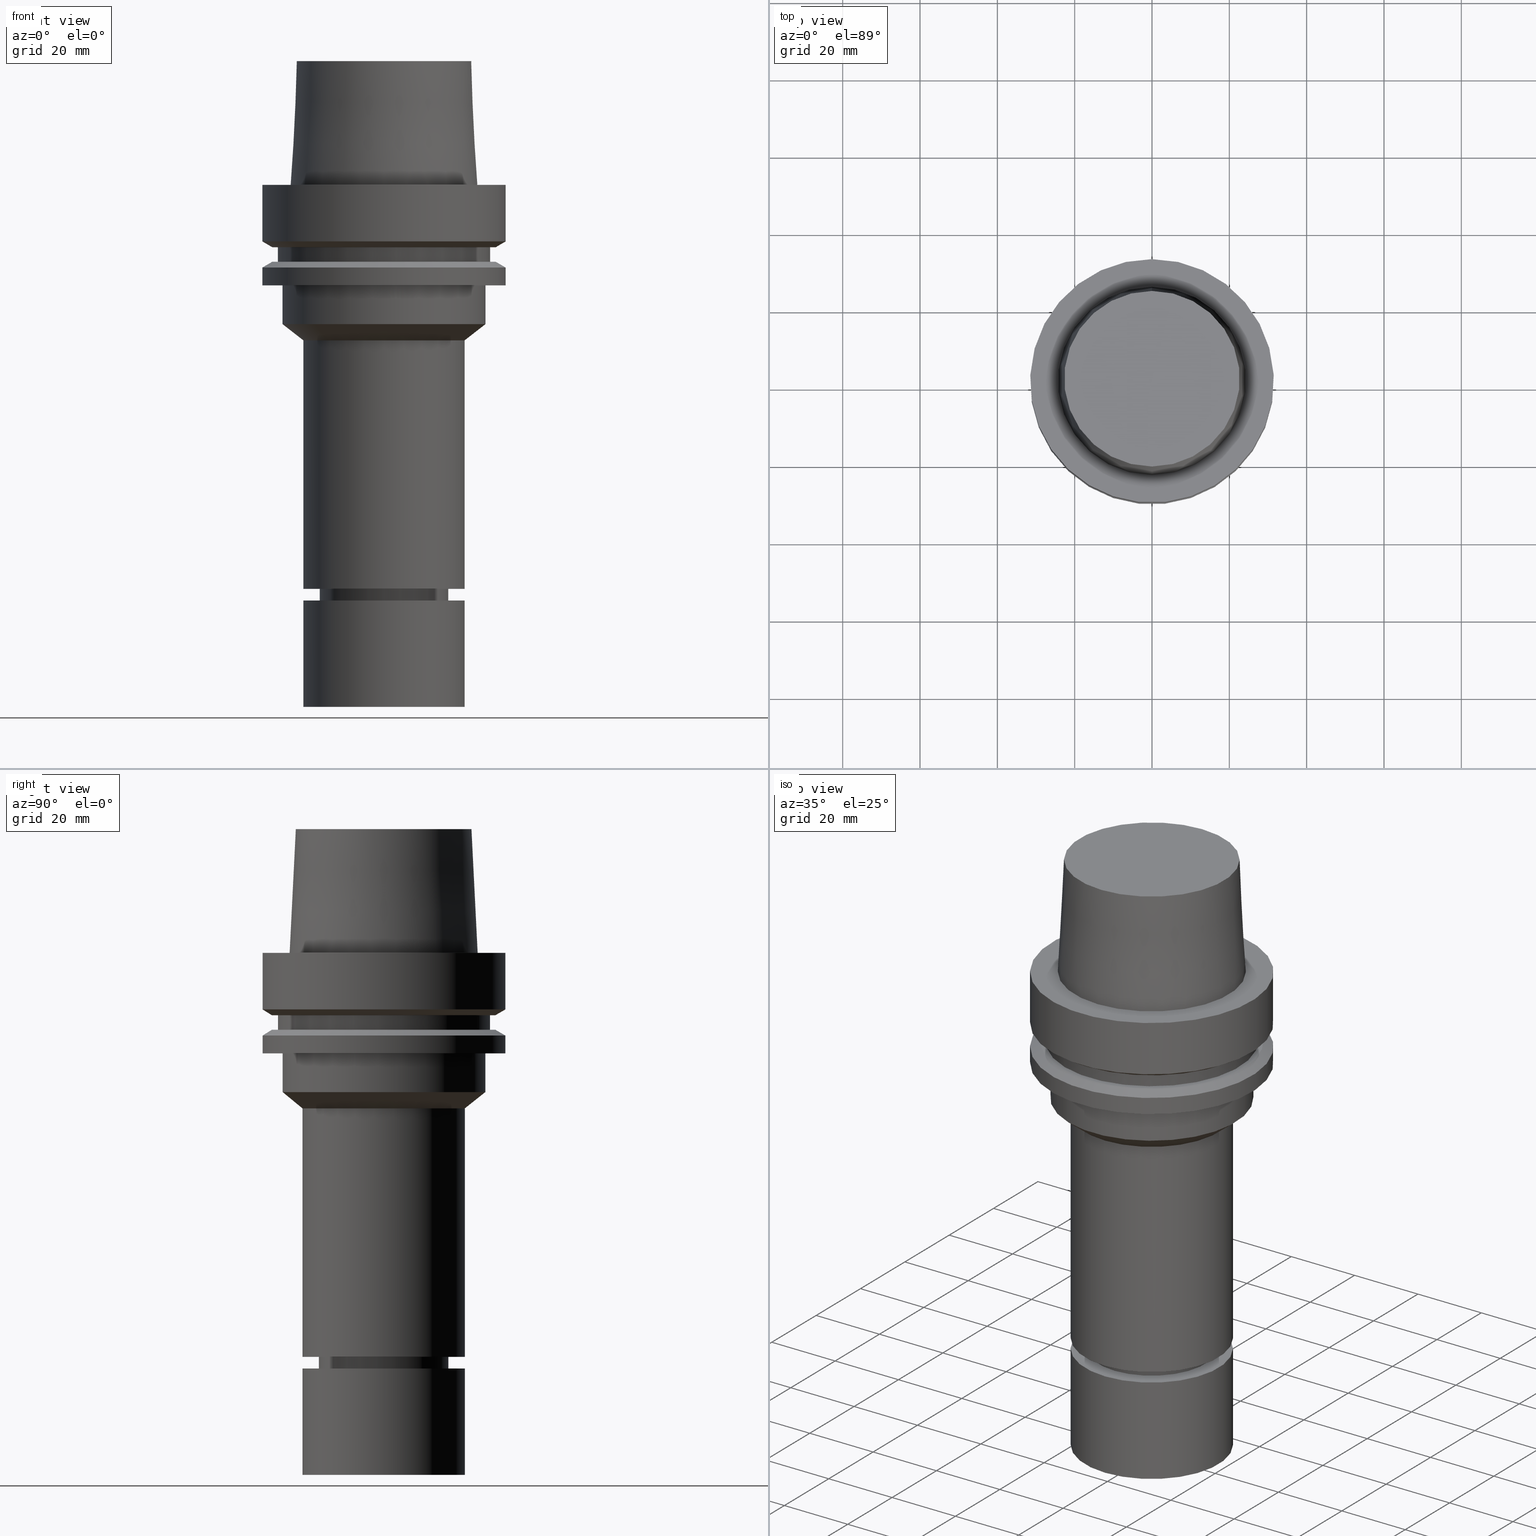
[diagram: canonical four-view strip — front | top / right | iso, engineering-drawing reading convention]
A machine part, canonical four-view strip (front | top / right | iso — engineering-drawing reading convention). The complete STEP part file that produces these views, byte-faithful:
ISO-10303-21;
HEADER;
FILE_DESCRIPTION((''),'1');
FILE_NAME('U:/Translate/02_3D_Field-HP\X2\FF71FF6FFF8CFF9F5916\X0\2013/02_Step_Field-HP\X2\FF71FF6FFF8CFF9F5916\X0\2013/HSK-A63-MEGAER25-135NL.stp','2016-06-22T00:22:26',(''),(''),'Spatial Interop R21 SP3','Kubotek KeyCreator 2011 V10.0.2 (22737)',' ');
FILE_SCHEMA(('automotive_design'));
ENDSEC;
DATA;
#1=MECHANICAL_DESIGN_GEOMETRIC_PRESENTATION_REPRESENTATION(' ',(#14,#15,#16,#17,#18,#19,#20,#21,#22,#23,#24,#25,#26,#27,#28,#29,#30,#31,#32,#33,#34,#35,#36,#37,#38,#39,#40,#41,#42,#43,#44,#45,#46,#47,#48,#49,#50,#51,#52,#53,#54,#55,#56,#57,#58,#59),#10);
#2=PRODUCT_DEFINITION_CONTEXT('',#60,'design');
#3=APPLICATION_PROTOCOL_DEFINITION('INTERNATIONAL STANDARD','automotive_design',1994,#60);
#4=PRODUCT_CATEGORY_RELATIONSHIP('NONE','NONE',#61,#62);
#5=SHAPE_DEFINITION_REPRESENTATION(#63,#64);
#6=PRODUCT_DEFINITION_CONTEXT('',#65,'design');
#7=APPLICATION_PROTOCOL_DEFINITION('INTERNATIONAL STANDARD','automotive_design',1994,#65);
#8=PRODUCT_CATEGORY_RELATIONSHIP('NONE','NONE',#66,#67);
#9=SHAPE_DEFINITION_REPRESENTATION(#68,#69);
#10= (GEOMETRIC_REPRESENTATION_CONTEXT(3)GLOBAL_UNCERTAINTY_ASSIGNED_CONTEXT((#72))GLOBAL_UNIT_ASSIGNED_CONTEXT((#74,#75,#76))REPRESENTATION_CONTEXT('NONE','WORKSPACE'));
#14=STYLED_ITEM('',(#78,#79),#80);
#15=STYLED_ITEM('',(#81,#82),#83);
#16=STYLED_ITEM('',(#84),#85);
#17=STYLED_ITEM('',(#86),#87);
#18=STYLED_ITEM('',(#88,#89),#90);
#19=STYLED_ITEM('',(#91,#92),#93);
#20=STYLED_ITEM('',(#94),#95);
#21=STYLED_ITEM('',(#96,#97),#98);
#22=STYLED_ITEM('',(#99,#100),#101);
#23=STYLED_ITEM('',(#102),#103);
#24=STYLED_ITEM('',(#104,#105),#106);
#25=STYLED_ITEM('',(#107,#108),#109);
#26=STYLED_ITEM('',(#110,#111),#112);
#27=STYLED_ITEM('',(#113,#114),#115);
#28=STYLED_ITEM('',(#116,#117),#118);
#29=STYLED_ITEM('',(#119,#120),#121);
#30=STYLED_ITEM('',(#122,#123),#124);
#31=STYLED_ITEM('',(#125),#126);
#32=STYLED_ITEM('',(#127),#128);
#33=STYLED_ITEM('',(#129,#130),#131);
#34=STYLED_ITEM('',(#132),#133);
#35=STYLED_ITEM('',(#134),#135);
#36=STYLED_ITEM('',(#136,#137),#138);
#37=STYLED_ITEM('',(#139),#140);
#38=STYLED_ITEM('',(#141),#142);
#39=STYLED_ITEM('',(#143,#144),#145);
#40=STYLED_ITEM('',(#146,#147),#148);
#41=STYLED_ITEM('',(#149,#150),#151);
#42=STYLED_ITEM('',(#152,#153),#154);
#43=STYLED_ITEM('',(#155),#156);
#44=STYLED_ITEM('',(#157,#158),#159);
#45=STYLED_ITEM('',(#160,#161),#162);
#46=STYLED_ITEM('',(#163),#164);
#47=STYLED_ITEM('',(#165,#166),#167);
#48=STYLED_ITEM('',(#168,#169),#170);
#49=STYLED_ITEM('',(#171),#172);
#50=STYLED_ITEM('',(#173),#174);
#51=STYLED_ITEM('',(#175),#176);
#52=STYLED_ITEM('',(#177),#178);
#53=STYLED_ITEM('',(#179),#180);
#54=STYLED_ITEM('',(#181,#182),#183);
#55=STYLED_ITEM('',(#184,#185),#186);
#56=STYLED_ITEM('',(#187),#188);
#57=STYLED_ITEM('',(#189),#190);
#58=STYLED_ITEM('',(#191),#192);
#59=STYLED_ITEM('',(#193),#194);
#60=APPLICATION_CONTEXT(' ');
#61=PRODUCT_CATEGORY('part','NONE');
#62=PRODUCT_RELATED_PRODUCT_CATEGORY('detail',' ',(#195));
#63=PRODUCT_DEFINITION_SHAPE('NONE','NONE',#196);
#64=ADVANCED_BREP_SHAPE_REPRESENTATION('Unnamed[1]',(#167,#197),#10);
#65=APPLICATION_CONTEXT(' ');
#66=PRODUCT_CATEGORY('part','NONE');
#67=PRODUCT_RELATED_PRODUCT_CATEGORY('detail',' ',(#198));
#68=PRODUCT_DEFINITION_SHAPE('NONE','NONE',#199);
#69=ADVANCED_BREP_SHAPE_REPRESENTATION('Unnamed[1]',(#80,#200),#10);
#72=UNCERTAINTY_MEASURE_WITH_UNIT(LENGTH_MEASURE(1.0E-006),#74,'','');
#74= (CONVERSION_BASED_UNIT('MILLIMETRE',#203)LENGTH_UNIT()NAMED_UNIT(#206));
#75= (NAMED_UNIT(#208)PLANE_ANGLE_UNIT()SI_UNIT($,.RADIAN.));
#76= (NAMED_UNIT(#208)SOLID_ANGLE_UNIT()SI_UNIT($,.STERADIAN.));
#78=PRESENTATION_STYLE_ASSIGNMENT((#214));
#79=PRESENTATION_STYLE_ASSIGNMENT((#215));
#80=MANIFOLD_SOLID_BREP('Unnamed[1]',#216);
#81=PRESENTATION_STYLE_ASSIGNMENT((#217));
#82=PRESENTATION_STYLE_ASSIGNMENT((#218));
#83=ADVANCED_FACE('Unnamed[1]',(#219),#220,.T.);
#84=PRESENTATION_STYLE_ASSIGNMENT((#221));
#85=EDGE_CURVE('Unnamed[1]',#222,#222,#223,.T.);
#86=PRESENTATION_STYLE_ASSIGNMENT((#224));
#87=EDGE_CURVE('Unnamed[1]',#225,#225,#226,.T.);
#88=PRESENTATION_STYLE_ASSIGNMENT((#227));
#89=PRESENTATION_STYLE_ASSIGNMENT((#228));
#90=ADVANCED_FACE('Unnamed[1]',(#229,#230),#231,.T.);
#91=PRESENTATION_STYLE_ASSIGNMENT((#232));
#92=PRESENTATION_STYLE_ASSIGNMENT((#233));
#93=ADVANCED_FACE('Unnamed[1]',(#234,#235),#236,.T.);
#94=PRESENTATION_STYLE_ASSIGNMENT((#237));
#95=EDGE_CURVE('Unnamed[1]',#238,#238,#239,.T.);
#96=PRESENTATION_STYLE_ASSIGNMENT((#240));
#97=PRESENTATION_STYLE_ASSIGNMENT((#241));
#98=ADVANCED_FACE('Unnamed[1]',(#242,#243),#244,.T.);
#99=PRESENTATION_STYLE_ASSIGNMENT((#245));
#100=PRESENTATION_STYLE_ASSIGNMENT((#246));
#101=ADVANCED_FACE('Unnamed[1]',(#247,#248),#249,.T.);
#102=PRESENTATION_STYLE_ASSIGNMENT((#250));
#103=EDGE_CURVE('Unnamed[1]',#251,#251,#252,.T.);
#104=PRESENTATION_STYLE_ASSIGNMENT((#253));
#105=PRESENTATION_STYLE_ASSIGNMENT((#254));
#106=ADVANCED_FACE('Unnamed[1]',(#255,#256),#257,.T.);
#107=PRESENTATION_STYLE_ASSIGNMENT((#258));
#108=PRESENTATION_STYLE_ASSIGNMENT((#259));
#109=ADVANCED_FACE('Unnamed[1]',(#260,#261),#262,.T.);
#110=PRESENTATION_STYLE_ASSIGNMENT((#263));
#111=PRESENTATION_STYLE_ASSIGNMENT((#264));
#112=ADVANCED_FACE('Unnamed[1]',(#265,#266),#267,.T.);
#113=PRESENTATION_STYLE_ASSIGNMENT((#268));
#114=PRESENTATION_STYLE_ASSIGNMENT((#269));
#115=ADVANCED_FACE('Unnamed[1]',(#270,#271),#272,.T.);
#116=PRESENTATION_STYLE_ASSIGNMENT((#273));
#117=PRESENTATION_STYLE_ASSIGNMENT((#274));
#118=ADVANCED_FACE('Unnamed[1]',(#275,#276),#277,.T.);
#119=PRESENTATION_STYLE_ASSIGNMENT((#278));
#120=PRESENTATION_STYLE_ASSIGNMENT((#279));
#121=ADVANCED_FACE('Unnamed[1]',(#280,#281),#282,.T.);
#122=PRESENTATION_STYLE_ASSIGNMENT((#283));
#123=PRESENTATION_STYLE_ASSIGNMENT((#284));
#124=ADVANCED_FACE('Unnamed[1]',(#285,#286),#287,.T.);
#125=PRESENTATION_STYLE_ASSIGNMENT((#288));
#126=EDGE_CURVE('Unnamed[1]',#289,#289,#290,.T.);
#127=PRESENTATION_STYLE_ASSIGNMENT((#291));
#128=EDGE_CURVE('Unnamed[1]',#292,#292,#293,.T.);
#129=PRESENTATION_STYLE_ASSIGNMENT((#294));
#130=PRESENTATION_STYLE_ASSIGNMENT((#295));
#131=ADVANCED_FACE('Unnamed[1]',(#296,#297),#298,.T.);
#132=PRESENTATION_STYLE_ASSIGNMENT((#299));
#133=EDGE_CURVE('Unnamed[1]',#300,#300,#301,.T.);
#134=PRESENTATION_STYLE_ASSIGNMENT((#302));
#135=EDGE_CURVE('Unnamed[1]',#303,#303,#304,.T.);
#136=PRESENTATION_STYLE_ASSIGNMENT((#305));
#137=PRESENTATION_STYLE_ASSIGNMENT((#306));
#138=ADVANCED_FACE('Unnamed[1]',(#307,#308),#309,.T.);
#139=PRESENTATION_STYLE_ASSIGNMENT((#310));
#140=EDGE_CURVE('Unnamed[1]',#311,#311,#312,.T.);
#141=PRESENTATION_STYLE_ASSIGNMENT((#313));
#142=EDGE_CURVE('Unnamed[1]',#314,#314,#315,.T.);
#143=PRESENTATION_STYLE_ASSIGNMENT((#316));
#144=PRESENTATION_STYLE_ASSIGNMENT((#317));
#145=ADVANCED_FACE('Unnamed[1]',(#318,#319),#320,.T.);
#146=PRESENTATION_STYLE_ASSIGNMENT((#321));
#147=PRESENTATION_STYLE_ASSIGNMENT((#322));
#148=ADVANCED_FACE('Unnamed[1]',(#323),#324,.T.);
#149=PRESENTATION_STYLE_ASSIGNMENT((#325));
#150=PRESENTATION_STYLE_ASSIGNMENT((#326));
#151=ADVANCED_FACE('Unnamed[1]',(#327),#328,.T.);
#152=PRESENTATION_STYLE_ASSIGNMENT((#329));
#153=PRESENTATION_STYLE_ASSIGNMENT((#330));
#154=ADVANCED_FACE('Unnamed[1]',(#331),#332,.T.);
#155=PRESENTATION_STYLE_ASSIGNMENT((#333));
#156=EDGE_CURVE('Unnamed[1]',#334,#334,#335,.T.);
#157=PRESENTATION_STYLE_ASSIGNMENT((#336));
#158=PRESENTATION_STYLE_ASSIGNMENT((#337));
#159=ADVANCED_FACE('Unnamed[1]',(#338,#339),#340,.T.);
#160=PRESENTATION_STYLE_ASSIGNMENT((#341));
#161=PRESENTATION_STYLE_ASSIGNMENT((#342));
#162=ADVANCED_FACE('Unnamed[1]',(#343,#344),#345,.T.);
#163=PRESENTATION_STYLE_ASSIGNMENT((#346));
#164=EDGE_CURVE('Unnamed[1]',#347,#347,#348,.T.);
#165=PRESENTATION_STYLE_ASSIGNMENT((#349));
#166=PRESENTATION_STYLE_ASSIGNMENT((#350));
#167=MANIFOLD_SOLID_BREP('Unnamed[1]',#351);
#168=PRESENTATION_STYLE_ASSIGNMENT((#352));
#169=PRESENTATION_STYLE_ASSIGNMENT((#353));
#170=ADVANCED_FACE('Unnamed[1]',(#354,#355),#356,.T.);
#171=PRESENTATION_STYLE_ASSIGNMENT((#357));
#172=EDGE_CURVE('Unnamed[1]',#358,#358,#359,.T.);
#173=PRESENTATION_STYLE_ASSIGNMENT((#360));
#174=EDGE_CURVE('Unnamed[1]',#361,#361,#362,.T.);
#175=PRESENTATION_STYLE_ASSIGNMENT((#363));
#176=EDGE_CURVE('Unnamed[1]',#364,#364,#365,.T.);
#177=PRESENTATION_STYLE_ASSIGNMENT((#366));
#178=EDGE_CURVE('Unnamed[1]',#367,#367,#368,.T.);
#179=PRESENTATION_STYLE_ASSIGNMENT((#369));
#180=EDGE_CURVE('Unnamed[1]',#370,#370,#371,.T.);
#181=PRESENTATION_STYLE_ASSIGNMENT((#372));
#182=PRESENTATION_STYLE_ASSIGNMENT((#373));
#183=ADVANCED_FACE('Unnamed[1]',(#374,#375),#376,.T.);
#184=PRESENTATION_STYLE_ASSIGNMENT((#377));
#185=PRESENTATION_STYLE_ASSIGNMENT((#378));
#186=ADVANCED_FACE('Unnamed[1]',(#379,#380),#381,.T.);
#187=PRESENTATION_STYLE_ASSIGNMENT((#382));
#188=EDGE_CURVE('Unnamed[1]',#383,#383,#384,.T.);
#189=PRESENTATION_STYLE_ASSIGNMENT((#385));
#190=EDGE_CURVE('Unnamed[1]',#386,#386,#387,.T.);
#191=PRESENTATION_STYLE_ASSIGNMENT((#388));
#192=EDGE_CURVE('Unnamed[1]',#389,#389,#390,.T.);
#193=PRESENTATION_STYLE_ASSIGNMENT((#391));
#194=EDGE_CURVE('Unnamed[1]',#392,#392,#393,.T.);
#195=PRODUCT('Unnamed[1]','Unnamed[1]','PART-Unnamed[1]-DESC',(#394));
#196=PRODUCT_DEFINITION('NONE','NONE',#395,#2);
#197=AXIS2_PLACEMENT_3D('',#396,#397,#398);
#198=PRODUCT('Unnamed[1]','Unnamed[1]','PART-Unnamed[1]-DESC',(#399));
#199=PRODUCT_DEFINITION('NONE','NONE',#400,#6);
#200=AXIS2_PLACEMENT_3D('',#401,#402,#403);
#203=LENGTH_MEASURE_WITH_UNIT(LENGTH_MEASURE(1.0),#404);
#206=DIMENSIONAL_EXPONENTS(1.0,0.0,0.0,0.0,0.0,0.0,0.0);
#208=DIMENSIONAL_EXPONENTS(0.0,0.0,0.0,0.0,0.0,0.0,0.0);
#214=SURFACE_STYLE_USAGE(.BOTH.,#405);
#215=CURVE_STYLE('',#406,POSITIVE_LENGTH_MEASURE(1000.0),#407);
#216=CLOSED_SHELL('',(#154,#148,#145));
#217=SURFACE_STYLE_USAGE(.BOTH.,#408);
#218=CURVE_STYLE('',#409,POSITIVE_LENGTH_MEASURE(1000.0),#410);
#219=FACE_OUTER_BOUND('',#411,.T.);
#220=PLANE('',#412);
#221=CURVE_STYLE('',#413,POSITIVE_LENGTH_MEASURE(1000.0),#414);
#222=VERTEX_POINT('',#415);
#223=CIRCLE('',#416,31.5);
#224=CURVE_STYLE('',#417,POSITIVE_LENGTH_MEASURE(1000.0),#418);
#225=VERTEX_POINT('',#419);
#226=CIRCLE('',#420,27.4999999999989);
#227=SURFACE_STYLE_USAGE(.BOTH.,#421);
#228=CURVE_STYLE('',#422,POSITIVE_LENGTH_MEASURE(1000.0),#423);
#229=FACE_BOUND('',#424,.T.);
#230=FACE_OUTER_BOUND('',#425,.T.);
#231=PLANE('',#426);
#232=SURFACE_STYLE_USAGE(.BOTH.,#427);
#233=CURVE_STYLE('',#428,POSITIVE_LENGTH_MEASURE(1000.0),#429);
#234=FACE_BOUND('',#430,.T.);
#235=FACE_BOUND('',#431,.T.);
#236=CONICAL_SURFACE('',#432,23.65,0.898977865464901);
#237=CURVE_STYLE('',#433,POSITIVE_LENGTH_MEASURE(1000.0),#434);
#238=VERTEX_POINT('',#435);
#239=CIRCLE('',#436,31.5);
#240=SURFACE_STYLE_USAGE(.BOTH.,#437);
#241=CURVE_STYLE('',#438,POSITIVE_LENGTH_MEASURE(1000.0),#439);
#242=FACE_BOUND('',#440,.T.);
#243=FACE_BOUND('',#441,.T.);
#244=CYLINDRICAL_SURFACE('',#442,31.5);
#245=SURFACE_STYLE_USAGE(.BOTH.,#443);
#246=CURVE_STYLE('',#444,POSITIVE_LENGTH_MEASURE(1000.0),#445);
#247=FACE_BOUND('',#446,.T.);
#248=FACE_BOUND('',#447,.T.);
#249=CONICAL_SURFACE('',#448,23.515,0.0499583957219433);
#250=CURVE_STYLE('',#449,POSITIVE_LENGTH_MEASURE(1000.0),#450);
#251=VERTEX_POINT('',#451);
#252=CIRCLE('',#452,14.9000000000006);
#253=SURFACE_STYLE_USAGE(.BOTH.,#453);
#254=CURVE_STYLE('',#454,POSITIVE_LENGTH_MEASURE(1000.0),#455);
#255=FACE_BOUND('',#456,.T.);
#256=FACE_BOUND('',#457,.T.);
#257=CYLINDRICAL_SURFACE('',#458,31.4999999999999);
#258=SURFACE_STYLE_USAGE(.BOTH.,#459);
#259=CURVE_STYLE('',#460,POSITIVE_LENGTH_MEASURE(1000.0),#461);
#260=FACE_BOUND('',#462,.T.);
#261=FACE_BOUND('',#463,.T.);
#262=CYLINDRICAL_SURFACE('',#464,21.0);
#263=SURFACE_STYLE_USAGE(.BOTH.,#465);
#264=CURVE_STYLE('',#466,POSITIVE_LENGTH_MEASURE(1000.0),#467);
#265=FACE_BOUND('',#468,.T.);
#266=FACE_BOUND('',#469,.T.);
#267=CYLINDRICAL_SURFACE('',#470,26.3);
#268=SURFACE_STYLE_USAGE(.BOTH.,#471);
#269=CURVE_STYLE('',#472,POSITIVE_LENGTH_MEASURE(1000.0),#473);
#270=FACE_BOUND('',#474,.T.);
#271=FACE_BOUND('',#475,.T.);
#272=CYLINDRICAL_SURFACE('',#476,16.0);
#273=SURFACE_STYLE_USAGE(.BOTH.,#477);
#274=CURVE_STYLE('',#478,POSITIVE_LENGTH_MEASURE(1000.0),#479);
#275=FACE_BOUND('',#480,.T.);
#276=FACE_BOUND('',#481,.T.);
#277=CYLINDRICAL_SURFACE('',#482,27.4999999999994);
#278=SURFACE_STYLE_USAGE(.BOTH.,#483);
#279=CURVE_STYLE('',#484,POSITIVE_LENGTH_MEASURE(1000.0),#485);
#280=FACE_BOUND('',#486,.T.);
#281=FACE_BOUND('',#487,.T.);
#282=CYLINDRICAL_SURFACE('',#488,16.7499999999962);
#283=SURFACE_STYLE_USAGE(.BOTH.,#489);
#284=CURVE_STYLE('',#490,POSITIVE_LENGTH_MEASURE(1000.0),#491);
#285=FACE_OUTER_BOUND('',#492,.T.);
#286=FACE_BOUND('',#493,.T.);
#287=PLANE('',#494);
#288=CURVE_STYLE('',#495,POSITIVE_LENGTH_MEASURE(1000.0),#496);
#289=VERTEX_POINT('',#497);
#290=CIRCLE('',#498,16.0);
#291=CURVE_STYLE('',#499,POSITIVE_LENGTH_MEASURE(1000.0),#500);
#292=VERTEX_POINT('',#501);
#293=CIRCLE('',#502,16.7499999999907);
#294=SURFACE_STYLE_USAGE(.BOTH.,#503);
#295=CURVE_STYLE('',#504,POSITIVE_LENGTH_MEASURE(1000.0),#505);
#296=FACE_BOUND('',#506,.T.);
#297=FACE_BOUND('',#507,.T.);
#298=CONICAL_SURFACE('',#508,16.3750000000008,0.846178977409388);
#299=CURVE_STYLE('',#509,POSITIVE_LENGTH_MEASURE(1000.0),#510);
#300=VERTEX_POINT('',#511);
#301=CIRCLE('',#512,16.0);
#302=CURVE_STYLE('',#513,POSITIVE_LENGTH_MEASURE(1000.0),#514);
#303=VERTEX_POINT('',#515);
#304=CIRCLE('',#516,21.0);
#305=SURFACE_STYLE_USAGE(.BOTH.,#517);
#306=CURVE_STYLE('',#518,POSITIVE_LENGTH_MEASURE(1000.0),#519);
#307=FACE_OUTER_BOUND('',#520,.T.);
#308=FACE_BOUND('',#521,.T.);
#309=PLANE('',#522);
#310=CURVE_STYLE('',#523,POSITIVE_LENGTH_MEASURE(1000.0),#524);
#311=VERTEX_POINT('',#525);
#312=CIRCLE('',#526,26.3);
#313=CURVE_STYLE('',#527,POSITIVE_LENGTH_MEASURE(1000.0),#528);
#314=VERTEX_POINT('',#529);
#315=CIRCLE('',#530,27.5);
#316=SURFACE_STYLE_USAGE(.BOTH.,#531);
#317=CURVE_STYLE('',#532,POSITIVE_LENGTH_MEASURE(1000.0),#533);
#318=FACE_BOUND('',#534,.T.);
#319=FACE_BOUND('',#535,.T.);
#320=CYLINDRICAL_SURFACE('',#536,21.0);
#321=SURFACE_STYLE_USAGE(.BOTH.,#537);
#322=CURVE_STYLE('',#538,POSITIVE_LENGTH_MEASURE(1000.0),#539);
#323=FACE_OUTER_BOUND('',#540,.T.);
#324=PLANE('',#541);
#325=SURFACE_STYLE_USAGE(.BOTH.,#542);
#326=CURVE_STYLE('',#543,POSITIVE_LENGTH_MEASURE(1000.0),#544);
#327=FACE_OUTER_BOUND('',#545,.T.);
#328=PLANE('',#546);
#329=SURFACE_STYLE_USAGE(.BOTH.,#547);
#330=CURVE_STYLE('',#548,POSITIVE_LENGTH_MEASURE(1000.0),#549);
#331=FACE_OUTER_BOUND('',#550,.T.);
#332=PLANE('',#551);
#333=CURVE_STYLE('',#552,POSITIVE_LENGTH_MEASURE(1000.0),#553);
#334=VERTEX_POINT('',#554);
#335=CIRCLE('',#555,31.5000000000001);
#336=SURFACE_STYLE_USAGE(.BOTH.,#556);
#337=CURVE_STYLE('',#557,POSITIVE_LENGTH_MEASURE(1000.0),#558);
#338=FACE_BOUND('',#559,.T.);
#339=FACE_BOUND('',#560,.T.);
#340=CONICAL_SURFACE('',#561,30.1987976320959,1.04719755119657);
#341=SURFACE_STYLE_USAGE(.BOTH.,#562);
#342=CURVE_STYLE('',#563,POSITIVE_LENGTH_MEASURE(1000.0),#564);
#343=FACE_OUTER_BOUND('',#565,.T.);
#344=FACE_BOUND('',#566,.T.);
#345=PLANE('',#567);
#346=CURVE_STYLE('',#568,POSITIVE_LENGTH_MEASURE(1000.0),#569);
#347=VERTEX_POINT('',#570);
#348=CIRCLE('',#571,28.8975952641919);
#349=SURFACE_STYLE_USAGE(.BOTH.,#572);
#350=CURVE_STYLE('',#573,POSITIVE_LENGTH_MEASURE(1000.0),#574);
#351=CLOSED_SHELL('',(#151,#170,#115,#131,#121,#138,#109,#93,#112,#162,#106,#159,#90,#118,#124,#186,#98,#183,#101,#83));
#352=SURFACE_STYLE_USAGE(.BOTH.,#575);
#353=CURVE_STYLE('',#576,POSITIVE_LENGTH_MEASURE(1000.0),#577);
#354=FACE_BOUND('',#578,.T.);
#355=FACE_BOUND('',#579,.T.);
#356=CONICAL_SURFACE('',#580,15.4500000000003,0.523598775598051);
#357=CURVE_STYLE('',#581,POSITIVE_LENGTH_MEASURE(1000.0),#582);
#358=VERTEX_POINT('',#583);
#359=CIRCLE('',#584,24.315);
#360=CURVE_STYLE('',#585,POSITIVE_LENGTH_MEASURE(1000.0),#586);
#361=VERTEX_POINT('',#587);
#362=CIRCLE('',#588,21.0);
#363=CURVE_STYLE('',#589,POSITIVE_LENGTH_MEASURE(1000.0),#590);
#364=VERTEX_POINT('',#591);
#365=CIRCLE('',#592,22.715);
#366=CURVE_STYLE('',#593,POSITIVE_LENGTH_MEASURE(1000.0),#594);
#367=VERTEX_POINT('',#595);
#368=CIRCLE('',#596,16.7500000000017);
#369=CURVE_STYLE('',#597,POSITIVE_LENGTH_MEASURE(1000.0),#598);
#370=VERTEX_POINT('',#599);
#371=CIRCLE('',#600,28.8975952641919);
#372=SURFACE_STYLE_USAGE(.BOTH.,#601);
#373=CURVE_STYLE('',#602,POSITIVE_LENGTH_MEASURE(1000.0),#603);
#374=FACE_BOUND('',#604,.T.);
#375=FACE_OUTER_BOUND('',#605,.T.);
#376=PLANE('',#606);
#377=SURFACE_STYLE_USAGE(.BOTH.,#607);
#378=CURVE_STYLE('',#608,POSITIVE_LENGTH_MEASURE(1000.0),#609);
#379=FACE_BOUND('',#610,.T.);
#380=FACE_BOUND('',#611,.T.);
#381=CONICAL_SURFACE('',#612,30.1987976320959,1.04719755119657);
#382=CURVE_STYLE('',#613,POSITIVE_LENGTH_MEASURE(1000.0),#614);
#383=VERTEX_POINT('',#615);
#384=CIRCLE('',#616,21.0);
#385=CURVE_STYLE('',#617,POSITIVE_LENGTH_MEASURE(1000.0),#618);
#386=VERTEX_POINT('',#619);
#387=CIRCLE('',#620,26.3);
#388=CURVE_STYLE('',#621,POSITIVE_LENGTH_MEASURE(1000.0),#622);
#389=VERTEX_POINT('',#623);
#390=CIRCLE('',#624,31.4999999999998);
#391=CURVE_STYLE('',#625,POSITIVE_LENGTH_MEASURE(1000.0),#626);
#392=VERTEX_POINT('',#627);
#393=CIRCLE('',#628,21.0);
#394=PRODUCT_CONTEXT('',#60,'mechanical');
#395=PRODUCT_DEFINITION_FORMATION_WITH_SPECIFIED_SOURCE(' ','NONE',#195,.NOT_KNOWN.);
#396=CARTESIAN_POINT('',(0.0,0.0,0.0));
#397=DIRECTION('',(0.0,0.0,1.0));
#398=DIRECTION('',(1.0,0.0,0.0));
#399=PRODUCT_CONTEXT('',#65,'mechanical');
#400=PRODUCT_DEFINITION_FORMATION_WITH_SPECIFIED_SOURCE(' ','NONE',#198,.NOT_KNOWN.);
#401=CARTESIAN_POINT('',(0.0,0.0,0.0));
#402=DIRECTION('',(0.0,0.0,1.0));
#403=DIRECTION('',(1.0,0.0,0.0));
#404= (NAMED_UNIT(#206)LENGTH_UNIT()SI_UNIT(.MILLI.,.METRE.));
#405=SURFACE_SIDE_STYLE('',(#630));
#406=DRAUGHTING_PRE_DEFINED_CURVE_FONT('continuous');
#407=COLOUR_RGB('',0.0,1.0,0.0);
#408=SURFACE_SIDE_STYLE('',(#631));
#409=DRAUGHTING_PRE_DEFINED_CURVE_FONT('continuous');
#410=COLOUR_RGB('',0.0,1.0,0.0);
#411=EDGE_LOOP('',(#632));
#412=AXIS2_PLACEMENT_3D('',#633,#634,#635);
#413=DRAUGHTING_PRE_DEFINED_CURVE_FONT('continuous');
#414=COLOUR_RGB('',0.0,1.0,0.0);
#415=CARTESIAN_POINT('',(8.95369947681261E-016,31.5,-14.6225009252407));
#416=AXIS2_PLACEMENT_3D('',#636,#637,#638);
#417=DRAUGHTING_PRE_DEFINED_CURVE_FONT('continuous');
#418=COLOUR_RGB('',0.0,1.0,0.0);
#419=CARTESIAN_POINT('',(1.21699275665276E-015,27.4999999999989,-19.8750000000013));
#420=AXIS2_PLACEMENT_3D('',#639,#640,#641);
#421=SURFACE_SIDE_STYLE('',(#642));
#422=DRAUGHTING_PRE_DEFINED_CURVE_FONT('continuous');
#423=COLOUR_RGB('',0.0,1.0,0.0);
#424=EDGE_LOOP('',(#643));
#425=EDGE_LOOP('',(#644));
#426=AXIS2_PLACEMENT_3D('',#645,#646,#647);
#427=SURFACE_SIDE_STYLE('',(#648));
#428=DRAUGHTING_PRE_DEFINED_CURVE_FONT('continuous');
#429=COLOUR_RGB('',0.0,1.0,0.0);
#430=EDGE_LOOP('',(#649));
#431=EDGE_LOOP('',(#650));
#432=AXIS2_PLACEMENT_3D('',#651,#652,#653);
#433=DRAUGHTING_PRE_DEFINED_CURVE_FONT('continuous');
#434=COLOUR_RGB('',0.0,1.0,0.0);
#435=CARTESIAN_POINT('',(1.30899429078397E-015,31.5,-21.3774990747592));
#436=AXIS2_PLACEMENT_3D('',#654,#655,#656);
#437=SURFACE_SIDE_STYLE('',(#657));
#438=DRAUGHTING_PRE_DEFINED_CURVE_FONT('continuous');
#439=COLOUR_RGB('',0.0,1.0,0.0);
#440=EDGE_LOOP('',(#658));
#441=EDGE_LOOP('',(#659));
#442=AXIS2_PLACEMENT_3D('',#660,#661,#662);
#443=SURFACE_SIDE_STYLE('',(#663));
#444=DRAUGHTING_PRE_DEFINED_CURVE_FONT('continuous');
#445=COLOUR_RGB('',0.0,1.0,0.0);
#446=EDGE_LOOP('',(#664));
#447=EDGE_LOOP('',(#665));
#448=AXIS2_PLACEMENT_3D('',#666,#667,#668);
#449=DRAUGHTING_PRE_DEFINED_CURVE_FONT('continuous');
#450=COLOUR_RGB('',0.0,1.0,0.0);
#451=CARTESIAN_POINT('',(7.6417960266795E-015,14.9000000000007,-124.8));
#452=AXIS2_PLACEMENT_3D('',#669,#670,#671);
#453=SURFACE_SIDE_STYLE('',(#672));
#454=DRAUGHTING_PRE_DEFINED_CURVE_FONT('continuous');
#455=COLOUR_RGB('',0.0,1.0,0.0);
#456=EDGE_LOOP('',(#673));
#457=EDGE_LOOP('',(#674));
#458=AXIS2_PLACEMENT_3D('',#675,#676,#677);
#459=SURFACE_SIDE_STYLE('',(#678));
#460=DRAUGHTING_PRE_DEFINED_CURVE_FONT('continuous');
#461=COLOUR_RGB('',0.0,1.0,0.0);
#462=EDGE_LOOP('',(#679));
#463=EDGE_LOOP('',(#680));
#464=AXIS2_PLACEMENT_3D('',#681,#682,#683);
#465=SURFACE_SIDE_STYLE('',(#684));
#466=DRAUGHTING_PRE_DEFINED_CURVE_FONT('continuous');
#467=COLOUR_RGB('',0.0,1.0,0.0);
#468=EDGE_LOOP('',(#685));
#469=EDGE_LOOP('',(#686));
#470=AXIS2_PLACEMENT_3D('',#687,#688,#689);
#471=SURFACE_SIDE_STYLE('',(#690));
#472=DRAUGHTING_PRE_DEFINED_CURVE_FONT('continuous');
#473=COLOUR_RGB('',0.0,1.0,0.0);
#474=EDGE_LOOP('',(#691));
#475=EDGE_LOOP('',(#692));
#476=AXIS2_PLACEMENT_3D('',#693,#694,#695);
#477=SURFACE_SIDE_STYLE('',(#696));
#478=DRAUGHTING_PRE_DEFINED_CURVE_FONT('continuous');
#479=COLOUR_RGB('',0.0,1.0,0.0);
#480=EDGE_LOOP('',(#697));
#481=EDGE_LOOP('',(#698));
#482=AXIS2_PLACEMENT_3D('',#699,#700,#701);
#483=SURFACE_SIDE_STYLE('',(#702));
#484=DRAUGHTING_PRE_DEFINED_CURVE_FONT('continuous');
#485=COLOUR_RGB('',0.0,1.0,0.0);
#486=EDGE_LOOP('',(#703));
#487=EDGE_LOOP('',(#704));
#488=AXIS2_PLACEMENT_3D('',#705,#706,#707);
#489=SURFACE_SIDE_STYLE('',(#708));
#490=DRAUGHTING_PRE_DEFINED_CURVE_FONT('continuous');
#491=COLOUR_RGB('',0.0,1.0,0.0);
#492=EDGE_LOOP('',(#709));
#493=EDGE_LOOP('',(#710));
#494=AXIS2_PLACEMENT_3D('',#711,#712,#713);
#495=DRAUGHTING_PRE_DEFINED_CURVE_FONT('continuous');
#496=COLOUR_RGB('',0.0,1.0,0.0);
#497=CARTESIAN_POINT('',(7.52513275041975E-015,16.0,-122.894744111674));
#498=AXIS2_PLACEMENT_3D('',#714,#715,#716);
#499=DRAUGHTING_PRE_DEFINED_CURVE_FONT('continuous');
#500=COLOUR_RGB('',0.0,1.0,0.0);
#501=CARTESIAN_POINT('',(6.39877952554487E-015,16.7499999999907,-104.499999999999));
#502=AXIS2_PLACEMENT_3D('',#717,#718,#719);
#503=SURFACE_SIDE_STYLE('',(#720));
#504=DRAUGHTING_PRE_DEFINED_CURVE_FONT('continuous');
#505=COLOUR_RGB('',0.0,1.0,0.0);
#506=EDGE_LOOP('',(#721));
#507=EDGE_LOOP('',(#722));
#508=AXIS2_PLACEMENT_3D('',#723,#724,#725);
#509=DRAUGHTING_PRE_DEFINED_CURVE_FONT('continuous');
#510=COLOUR_RGB('',0.0,1.0,0.0);
#511=CARTESIAN_POINT('',(6.8048281744902E-015,16.0,-111.131277674967));
#512=AXIS2_PLACEMENT_3D('',#726,#727,#728);
#513=DRAUGHTING_PRE_DEFINED_CURVE_FONT('continuous');
#514=COLOUR_RGB('',0.0,1.0,0.0);
#515=CARTESIAN_POINT('',(6.39877952554491E-015,21.0,-104.5));
#516=AXIS2_PLACEMENT_3D('',#729,#730,#731);
#517=SURFACE_SIDE_STYLE('',(#732));
#518=DRAUGHTING_PRE_DEFINED_CURVE_FONT('continuous');
#519=COLOUR_RGB('',0.0,1.0,0.0);
#520=EDGE_LOOP('',(#733));
#521=EDGE_LOOP('',(#734));
#522=AXIS2_PLACEMENT_3D('',#735,#736,#737);
#523=DRAUGHTING_PRE_DEFINED_CURVE_FONT('continuous');
#524=COLOUR_RGB('',0.0,1.0,0.0);
#525=CARTESIAN_POINT('',(2.20436423812685E-015,26.3,-35.9999999944737));
#526=AXIS2_PLACEMENT_3D('',#738,#739,#740);
#527=DRAUGHTING_PRE_DEFINED_CURVE_FONT('continuous');
#528=COLOUR_RGB('',0.0,1.0,0.0);
#529=CARTESIAN_POINT('',(9.87371481812537E-016,27.5,-16.1249999999997));
#530=AXIS2_PLACEMENT_3D('',#741,#742,#743);
#531=SURFACE_SIDE_STYLE('',(#744));
#532=DRAUGHTING_PRE_DEFINED_CURVE_FONT('continuous');
#533=COLOUR_RGB('',0.0,1.0,0.0);
#534=EDGE_LOOP('',(#745));
#535=EDGE_LOOP('',(#746));
#536=AXIS2_PLACEMENT_3D('',#747,#748,#749);
#537=SURFACE_SIDE_STYLE('',(#750));
#538=DRAUGHTING_PRE_DEFINED_CURVE_FONT('continuous');
#539=COLOUR_RGB('',0.0,1.0,0.0);
#540=EDGE_LOOP('',(#751));
#541=AXIS2_PLACEMENT_3D('',#752,#753,#754);
#542=SURFACE_SIDE_STYLE('',(#755));
#543=DRAUGHTING_PRE_DEFINED_CURVE_FONT('continuous');
#544=COLOUR_RGB('',0.0,1.0,0.0);
#545=EDGE_LOOP('',(#756));
#546=AXIS2_PLACEMENT_3D('',#757,#758,#759);
#547=SURFACE_SIDE_STYLE('',(#760));
#548=DRAUGHTING_PRE_DEFINED_CURVE_FONT('continuous');
#549=COLOUR_RGB('',0.0,1.0,0.0);
#550=EDGE_LOOP('',(#761));
#551=AXIS2_PLACEMENT_3D('',#762,#763,#764);
#552=DRAUGHTING_PRE_DEFINED_CURVE_FONT('continuous');
#553=COLOUR_RGB('',0.0,1.0,0.0);
#554=CARTESIAN_POINT('',(-3.88267476788467E-031,31.5000000000001,3.85763741731417E-015));
#555=AXIS2_PLACEMENT_3D('',#765,#766,#767);
#556=SURFACE_SIDE_STYLE('',(#768));
#557=DRAUGHTING_PRE_DEFINED_CURVE_FONT('continuous');
#558=COLOUR_RGB('',0.0,1.0,0.0);
#559=EDGE_LOOP('',(#769));
#560=EDGE_LOOP('',(#770));
#561=AXIS2_PLACEMENT_3D('',#771,#772,#773);
#562=SURFACE_SIDE_STYLE('',(#774));
#563=DRAUGHTING_PRE_DEFINED_CURVE_FONT('continuous');
#564=COLOUR_RGB('',0.0,1.0,0.0);
#565=EDGE_LOOP('',(#775));
#566=EDGE_LOOP('',(#776));
#567=AXIS2_PLACEMENT_3D('',#777,#778,#779);
#568=DRAUGHTING_PRE_DEFINED_CURVE_FONT('continuous');
#569=COLOUR_RGB('',0.0,1.0,0.0);
#570=CARTESIAN_POINT('',(1.21699275665268E-015,28.8975952641919,-19.875));
#571=AXIS2_PLACEMENT_3D('',#780,#781,#782);
#572=SURFACE_SIDE_STYLE('',(#783));
#573=DRAUGHTING_PRE_DEFINED_CURVE_FONT('continuous');
#574=COLOUR_RGB('',0.0,1.0,0.0);
#575=SURFACE_SIDE_STYLE('',(#784));
#576=DRAUGHTING_PRE_DEFINED_CURVE_FONT('continuous');
#577=COLOUR_RGB('',0.0,1.0,0.0);
#578=EDGE_LOOP('',(#785));
#579=EDGE_LOOP('',(#786));
#580=AXIS2_PLACEMENT_3D('',#787,#788,#789);
#581=DRAUGHTING_PRE_DEFINED_CURVE_FONT('continuous');
#582=COLOUR_RGB('',0.0,1.0,0.0);
#583=CARTESIAN_POINT('',(-2.99705514225764E-031,24.315,2.97772869212679E-015));
#584=AXIS2_PLACEMENT_3D('',#790,#791,#792);
#585=DRAUGHTING_PRE_DEFINED_CURVE_FONT('continuous');
#586=COLOUR_RGB('',0.0,1.0,0.0);
#587=CARTESIAN_POINT('',(8.26636589424463E-015,21.0,-135.0));
#588=AXIS2_PLACEMENT_3D('',#793,#794,#795);
#589=DRAUGHTING_PRE_DEFINED_CURVE_FONT('continuous');
#590=COLOUR_RGB('',0.0,1.0,0.0);
#591=CARTESIAN_POINT('',(-1.95943487863576E-015,22.715,32.0));
#592=AXIS2_PLACEMENT_3D('',#796,#797,#798);
#593=DRAUGHTING_PRE_DEFINED_CURVE_FONT('continuous');
#594=COLOUR_RGB('',0.0,1.0,0.0);
#595=CARTESIAN_POINT('',(6.7641727903392E-015,16.7500000000017,-110.467324865401));
#596=AXIS2_PLACEMENT_3D('',#799,#800,#801);
#597=DRAUGHTING_PRE_DEFINED_CURVE_FONT('continuous');
#598=COLOUR_RGB('',0.0,1.0,0.0);
#599=CARTESIAN_POINT('',(9.87371481812551E-016,28.8975952641919,-16.125));
#600=AXIS2_PLACEMENT_3D('',#802,#803,#804);
#601=SURFACE_SIDE_STYLE('',(#805));
#602=DRAUGHTING_PRE_DEFINED_CURVE_FONT('continuous');
#603=COLOUR_RGB('',0.0,1.0,0.0);
#604=EDGE_LOOP('',(#806));
#605=EDGE_LOOP('',(#807));
#606=AXIS2_PLACEMENT_3D('',#808,#809,#810);
#607=SURFACE_SIDE_STYLE('',(#811));
#608=DRAUGHTING_PRE_DEFINED_CURVE_FONT('continuous');
#609=COLOUR_RGB('',0.0,1.0,0.0);
#610=EDGE_LOOP('',(#812));
#611=EDGE_LOOP('',(#813));
#612=AXIS2_PLACEMENT_3D('',#814,#815,#816);
#613=DRAUGHTING_PRE_DEFINED_CURVE_FONT('continuous');
#614=COLOUR_RGB('',0.0,1.0,0.0);
#615=CARTESIAN_POINT('',(2.46243754685596E-015,21.0,-40.21465697));
#616=AXIS2_PLACEMENT_3D('',#817,#818,#819);
#617=DRAUGHTING_PRE_DEFINED_CURVE_FONT('continuous');
#618=COLOUR_RGB('',0.0,1.0,0.0);
#619=CARTESIAN_POINT('',(1.59204083889154E-015,26.3,-25.9999999999997));
#620=AXIS2_PLACEMENT_3D('',#820,#821,#822);
#621=DRAUGHTING_PRE_DEFINED_CURVE_FONT('continuous');
#622=COLOUR_RGB('',0.0,1.0,0.0);
#623=CARTESIAN_POINT('',(1.59204083889155E-015,31.4999999999998,-25.9999999999999));
#624=AXIS2_PLACEMENT_3D('',#823,#824,#825);
#625=DRAUGHTING_PRE_DEFINED_CURVE_FONT('continuous');
#626=COLOUR_RGB('',0.0,1.0,0.0);
#627=CARTESIAN_POINT('',(6.58247654541702E-015,21.0,-107.5));
#628=AXIS2_PLACEMENT_3D('',#826,#827,#828);
#630=SURFACE_STYLE_FILL_AREA(#829);
#631=SURFACE_STYLE_FILL_AREA(#830);
#632=ORIENTED_EDGE('',*,*,#176,.T.);
#633=CARTESIAN_POINT('',(-1.95943487863576E-015,11.3575,32.0));
#634=DIRECTION('',(-6.12323399573677E-017,9.72362339746437E-016,1.0));
#635=DIRECTION('',(5.47128686183263E-032,1.0,-9.72362339746437E-016));
#636=CARTESIAN_POINT('',(8.95369947681262E-016,1.79073989536252E-015,-14.6225009252407));
#637=DIRECTION('',(-6.12323399573677E-017,-1.22464679914735E-016,1.0));
#638=DIRECTION('',(-1.23259516440783E-032,1.0,1.22464679914735E-016));
#639=CARTESIAN_POINT('',(1.21699275665276E-015,2.43398551330552E-015,-19.8750000000013));
#640=DIRECTION('',(-6.12323399573677E-017,-1.22464679914735E-016,1.0));
#641=DIRECTION('',(-1.23259516440783E-032,1.0,1.22464679914735E-016));
#642=SURFACE_STYLE_FILL_AREA(#831);
#643=ORIENTED_EDGE('',*,*,#87,.F.);
#644=ORIENTED_EDGE('',*,*,#164,.T.);
#645=CARTESIAN_POINT('',(1.21699275665272E-015,28.1987976320954,-19.8750000000006));
#646=DIRECTION('',(-6.12323399573677E-017,-9.58463617675421E-013,1.0));
#647=DIRECTION('',(-5.86937972270006E-029,1.0,9.58463617675421E-013));
#648=SURFACE_STYLE_FILL_AREA(#832);
#649=ORIENTED_EDGE('',*,*,#140,.F.);
#650=ORIENTED_EDGE('',*,*,#188,.T.);
#651=CARTESIAN_POINT('',(2.33340089249141E-015,4.66680178498281E-015,-38.1073284822368));
#652=DIRECTION('',(-6.12323399573677E-017,-1.22464679914735E-016,1.0));
#653=DIRECTION('',(-1.23259516440783E-032,1.0,1.22464679914735E-016));
#654=CARTESIAN_POINT('',(1.30899429078397E-015,2.61798858156794E-015,-21.3774990747592));
#655=DIRECTION('',(-6.12323399573677E-017,-1.22464679914735E-016,1.0));
#656=DIRECTION('',(-1.23259516440783E-032,1.0,1.22464679914735E-016));
#657=SURFACE_STYLE_FILL_AREA(#833);
#658=ORIENTED_EDGE('',*,*,#156,.F.);
#659=ORIENTED_EDGE('',*,*,#85,.T.);
#660=CARTESIAN_POINT('',(4.47684973840631E-016,8.95369947681262E-016,-7.31125046262035));
#661=DIRECTION('',(-6.12323399573677E-017,-1.22464679914735E-016,1.0));
#662=DIRECTION('',(-1.23259516440783E-032,1.0,1.22464679914735E-016));
#663=SURFACE_STYLE_FILL_AREA(#834);
#664=ORIENTED_EDGE('',*,*,#176,.F.);
#665=ORIENTED_EDGE('',*,*,#172,.T.);
#666=CARTESIAN_POINT('',(-9.79717439317882E-016,-1.95943487863576E-015,16.0));
#667=DIRECTION('',(6.12323399573677E-017,1.22464679914735E-016,-1.0));
#668=DIRECTION('',(-1.23259516440783E-032,1.0,1.22464679914735E-016));
#669=CARTESIAN_POINT('',(7.6417960266795E-015,1.5283592053359E-014,-124.8));
#670=DIRECTION('',(-6.12323399573677E-017,-1.22464679914735E-016,1.0));
#671=DIRECTION('',(-1.23259516440783E-032,1.0,1.22464679914735E-016));
#672=SURFACE_STYLE_FILL_AREA(#835);
#673=ORIENTED_EDGE('',*,*,#95,.F.);
#674=ORIENTED_EDGE('',*,*,#192,.T.);
#675=CARTESIAN_POINT('',(1.45051756483776E-015,2.90103512967552E-015,-23.6887495373796));
#676=DIRECTION('',(-6.12323399573677E-017,-1.22464679914735E-016,1.0));
#677=DIRECTION('',(-1.23259516440783E-032,1.0,1.22464679914735E-016));
#678=SURFACE_STYLE_FILL_AREA(#836);
#679=ORIENTED_EDGE('',*,*,#188,.F.);
#680=ORIENTED_EDGE('',*,*,#135,.T.);
#681=CARTESIAN_POINT('',(4.43060853620044E-015,8.86121707240088E-015,-72.357328485));
#682=DIRECTION('',(-6.12323399573677E-017,-1.22464679914735E-016,1.0));
#683=DIRECTION('',(-1.23259516440783E-032,1.0,1.22464679914735E-016));
#684=SURFACE_STYLE_FILL_AREA(#837);
#685=ORIENTED_EDGE('',*,*,#190,.F.);
#686=ORIENTED_EDGE('',*,*,#140,.T.);
#687=CARTESIAN_POINT('',(1.89820253850919E-015,3.79640507701839E-015,-30.9999999972367));
#688=DIRECTION('',(-6.12323399573677E-017,-1.22464679914735E-016,1.0));
#689=DIRECTION('',(-1.23259516440783E-032,1.0,1.22464679914735E-016));
#690=SURFACE_STYLE_FILL_AREA(#838);
#691=ORIENTED_EDGE('',*,*,#133,.F.);
#692=ORIENTED_EDGE('',*,*,#126,.T.);
#693=CARTESIAN_POINT('',(7.16498046245498E-015,1.432996092491E-014,-117.013010893321));
#694=DIRECTION('',(-6.12323399573677E-017,-1.22464679914735E-016,1.0));
#695=DIRECTION('',(-1.23259516440783E-032,1.0,1.22464679914735E-016));
#696=SURFACE_STYLE_FILL_AREA(#839);
#697=ORIENTED_EDGE('',*,*,#142,.F.);
#698=ORIENTED_EDGE('',*,*,#87,.T.);
#699=CARTESIAN_POINT('',(1.10218211923265E-015,2.2043642384653E-015,-18.0000000000005));
#700=DIRECTION('',(-6.12323399573677E-017,-1.22464679914735E-016,1.0));
#701=DIRECTION('',(-1.23259516440783E-032,1.0,1.22464679914735E-016));
#702=SURFACE_STYLE_FILL_AREA(#840);
#703=ORIENTED_EDGE('',*,*,#128,.F.);
#704=ORIENTED_EDGE('',*,*,#178,.T.);
#705=CARTESIAN_POINT('',(6.58147615794204E-015,1.31629523158841E-014,-107.4836624327));
#706=DIRECTION('',(-6.12323399573676E-017,-1.22464679914735E-016,1.0));
#707=DIRECTION('',(-1.23259516440783E-032,1.0,1.22464679914735E-016));
#708=SURFACE_STYLE_FILL_AREA(#841);
#709=ORIENTED_EDGE('',*,*,#180,.F.);
#710=ORIENTED_EDGE('',*,*,#142,.T.);
#711=CARTESIAN_POINT('',(9.87371481812544E-016,28.1987976320959,-16.1249999999999));
#712=DIRECTION('',(6.12323399573677E-017,-1.65108768595307E-013,-1.0));
#713=DIRECTION('',(-1.01051690958394E-029,-1.0,1.65108768595307E-013));
#714=CARTESIAN_POINT('',(7.52513275041975E-015,1.50502655008395E-014,-122.894744111674));
#715=DIRECTION('',(-6.12323399573677E-017,-1.22464679914735E-016,1.0));
#716=DIRECTION('',(-1.23259516440783E-032,1.0,1.22464679914735E-016));
#717=CARTESIAN_POINT('',(6.39877952554487E-015,1.27975590510897E-014,-104.499999999999));
#718=DIRECTION('',(-6.12323399573677E-017,-1.22464679914735E-016,1.0));
#719=DIRECTION('',(-1.23259516440783E-032,1.0,1.22464679914735E-016));
#720=SURFACE_STYLE_FILL_AREA(#842);
#721=ORIENTED_EDGE('',*,*,#178,.F.);
#722=ORIENTED_EDGE('',*,*,#133,.T.);
#723=CARTESIAN_POINT('',(6.7845004824147E-015,1.35690009648294E-014,-110.799301270184));
#724=DIRECTION('',(-6.12323399573677E-017,-1.22464679914735E-016,1.0));
#725=DIRECTION('',(-1.23259516440783E-032,1.0,1.22464679914735E-016));
#726=CARTESIAN_POINT('',(6.8048281744902E-015,1.36096563489804E-014,-111.131277674967));
#727=DIRECTION('',(-6.12323399573677E-017,-1.22464679914735E-016,1.0));
#728=DIRECTION('',(-1.23259516440783E-032,1.0,1.22464679914735E-016));
#729=CARTESIAN_POINT('',(6.39877952554492E-015,1.27975590510898E-014,-104.5));
#730=DIRECTION('',(-6.12323399573677E-017,-1.22464679914735E-016,1.0));
#731=DIRECTION('',(-1.23259516440783E-032,1.0,1.22464679914735E-016));
#732=SURFACE_STYLE_FILL_AREA(#843);
#733=ORIENTED_EDGE('',*,*,#135,.F.);
#734=ORIENTED_EDGE('',*,*,#128,.T.);
#735=CARTESIAN_POINT('',(6.39877952554489E-015,18.8749999999954,-104.5));
#736=DIRECTION('',(6.12323399573677E-017,-1.63720330859704E-013,-1.0));
#737=DIRECTION('',(-1.00201518044033E-029,-1.0,1.63720330859704E-013));
#738=CARTESIAN_POINT('',(2.20436423812685E-015,4.40872847625369E-015,-35.9999999944737));
#739=DIRECTION('',(-6.12323399573677E-017,-1.22464679914735E-016,1.0));
#740=DIRECTION('',(-1.23259516440783E-032,1.0,1.22464679914735E-016));
#741=CARTESIAN_POINT('',(9.87371481812538E-016,1.97474296362508E-015,-16.1249999999997));
#742=DIRECTION('',(-6.12323399573677E-017,-1.22464679914735E-016,1.0));
#743=DIRECTION('',(-1.23259516440783E-032,1.0,1.22464679914735E-016));
#744=SURFACE_STYLE_FILL_AREA(#844);
#745=ORIENTED_EDGE('',*,*,#174,.F.);
#746=ORIENTED_EDGE('',*,*,#194,.T.);
#747=CARTESIAN_POINT('',(7.42442121983083E-015,1.48488424396617E-014,-121.25));
#748=DIRECTION('',(6.12323399573677E-017,1.22464679914735E-016,-1.0));
#749=DIRECTION('',(-1.23259516440783E-032,1.0,1.22464679914735E-016));
#750=SURFACE_STYLE_FILL_AREA(#845);
#751=ORIENTED_EDGE('',*,*,#194,.F.);
#752=CARTESIAN_POINT('',(6.58247654541702E-015,10.5,-107.5));
#753=DIRECTION('',(-6.12323399573677E-017,-1.22464679914735E-016,1.0));
#754=DIRECTION('',(1.23259516440783E-032,-1.0,-1.22464679914735E-016));
#755=SURFACE_STYLE_FILL_AREA(#846);
#756=ORIENTED_EDGE('',*,*,#103,.F.);
#757=CARTESIAN_POINT('',(7.64179602667948E-015,7.45000000000034,-124.8));
#758=DIRECTION('',(6.12323399573677E-017,-2.9443743116813E-014,-1.0));
#759=DIRECTION('',(-1.79808213541533E-030,-1.0,2.9443743116813E-014));
#760=SURFACE_STYLE_FILL_AREA(#847);
#761=ORIENTED_EDGE('',*,*,#174,.T.);
#762=CARTESIAN_POINT('',(8.26636589424463E-015,10.5,-135.0));
#763=DIRECTION('',(6.12323399573677E-017,1.22464679914735E-016,-1.0));
#764=DIRECTION('',(-1.23259516440783E-032,1.0,1.22464679914735E-016));
#765=CARTESIAN_POINT('',(0.0,0.0,0.0));
#766=DIRECTION('',(-6.12323399573677E-017,-1.22464679914735E-016,1.0));
#767=DIRECTION('',(-1.23259516440783E-032,1.0,1.22464679914735E-016));
#768=SURFACE_STYLE_FILL_AREA(#848);
#769=ORIENTED_EDGE('',*,*,#164,.F.);
#770=ORIENTED_EDGE('',*,*,#95,.T.);
#771=CARTESIAN_POINT('',(1.26299352371833E-015,2.52598704743665E-015,-20.6262495373796));
#772=DIRECTION('',(6.12323399573677E-017,1.22464679914735E-016,-1.0));
#773=DIRECTION('',(-1.23259516440783E-032,1.0,1.22464679914735E-016));
#774=SURFACE_STYLE_FILL_AREA(#849);
#775=ORIENTED_EDGE('',*,*,#192,.F.);
#776=ORIENTED_EDGE('',*,*,#190,.T.);
#777=CARTESIAN_POINT('',(1.59204083889155E-015,28.8999999999999,-25.9999999999998));
#778=DIRECTION('',(6.12323399573677E-017,-4.01871712910923E-014,-1.0));
#779=DIRECTION('',(-2.45592738169036E-030,-1.0,4.01871712910923E-014));
#780=CARTESIAN_POINT('',(1.21699275665268E-015,2.43398551330536E-015,-19.875));
#781=DIRECTION('',(-6.12323399573677E-017,-1.22464679914735E-016,1.0));
#782=DIRECTION('',(-1.23259516440783E-032,1.0,1.22464679914735E-016));
#783=SURFACE_STYLE_FILL_AREA(#850);
#784=SURFACE_STYLE_FILL_AREA(#851);
#785=ORIENTED_EDGE('',*,*,#126,.F.);
#786=ORIENTED_EDGE('',*,*,#103,.T.);
#787=CARTESIAN_POINT('',(7.58346438854962E-015,1.51669287770992E-014,-123.847372055837));
#788=DIRECTION('',(-6.12323399573677E-017,-1.22464679914735E-016,1.0));
#789=DIRECTION('',(-1.23259516440783E-032,1.0,1.22464679914735E-016));
#790=CARTESIAN_POINT('',(0.0,0.0,0.0));
#791=DIRECTION('',(-6.12323399573677E-017,-1.22464679914735E-016,1.0));
#792=DIRECTION('',(-1.23259516440783E-032,1.0,1.22464679914735E-016));
#793=CARTESIAN_POINT('',(8.26636589424463E-015,1.65327317884893E-014,-135.0));
#794=DIRECTION('',(6.12323399573677E-017,1.22464679914735E-016,-1.0));
#795=DIRECTION('',(-1.23259516440783E-032,1.0,1.22464679914735E-016));
#796=CARTESIAN_POINT('',(-1.95943487863576E-015,-3.91886975727153E-015,32.0));
#797=DIRECTION('',(-6.12323399573676E-017,-1.22464679914735E-016,1.0));
#798=DIRECTION('',(-1.23259516440783E-032,1.0,1.22464679914735E-016));
#799=CARTESIAN_POINT('',(6.7641727903392E-015,1.35283455806784E-014,-110.467324865401));
#800=DIRECTION('',(-6.12323399573677E-017,-1.22464679914735E-016,1.0));
#801=DIRECTION('',(-1.23259516440783E-032,1.0,1.22464679914735E-016));
#802=CARTESIAN_POINT('',(9.87371481812552E-016,1.9747429636251E-015,-16.125));
#803=DIRECTION('',(-6.12323399573677E-017,-1.22464679914735E-016,1.0));
#804=DIRECTION('',(-1.23259516440783E-032,1.0,1.22464679914735E-016));
#805=SURFACE_STYLE_FILL_AREA(#852);
#806=ORIENTED_EDGE('',*,*,#172,.F.);
#807=ORIENTED_EDGE('',*,*,#156,.T.);
#808=CARTESIAN_POINT('',(-3.43986495507116E-031,27.9075,3.41768305472048E-015));
#809=DIRECTION('',(-6.12323399573677E-017,-1.22464679914735E-016,1.0));
#810=DIRECTION('',(-1.23259516440783E-032,1.0,1.22464679914735E-016));
#811=SURFACE_STYLE_FILL_AREA(#853);
#812=ORIENTED_EDGE('',*,*,#85,.F.);
#813=ORIENTED_EDGE('',*,*,#180,.T.);
#814=CARTESIAN_POINT('',(9.41370714746907E-016,1.88274142949381E-015,-15.3737504626203));
#815=DIRECTION('',(-6.12323399573677E-017,-1.22464679914735E-016,1.0));
#816=DIRECTION('',(-1.23259516440783E-032,1.0,1.22464679914735E-016));
#817=CARTESIAN_POINT('',(2.46243754685596E-015,4.92487509371193E-015,-40.21465697));
#818=DIRECTION('',(-6.12323399573677E-017,-1.22464679914735E-016,1.0));
#819=DIRECTION('',(-1.23259516440783E-032,1.0,1.22464679914735E-016));
#820=CARTESIAN_POINT('',(1.59204083889154E-015,3.18408167778308E-015,-25.9999999999997));
#821=DIRECTION('',(-6.12323399573677E-017,-1.22464679914735E-016,1.0));
#822=DIRECTION('',(-1.23259516440783E-032,1.0,1.22464679914735E-016));
#823=CARTESIAN_POINT('',(1.59204083889155E-015,3.1840816777831E-015,-25.9999999999999));
#824=DIRECTION('',(-6.12323399573676E-017,-1.22464679914735E-016,1.0));
#825=DIRECTION('',(-1.23259516440783E-032,1.0,1.22464679914735E-016));
#826=CARTESIAN_POINT('',(6.58247654541702E-015,1.3164953090834E-014,-107.5));
#827=DIRECTION('',(6.12323399573677E-017,1.22464679914735E-016,-1.0));
#828=DIRECTION('',(-1.23259516440783E-032,1.0,1.22464679914735E-016));
#829=FILL_AREA_STYLE('',(#854));
#830=FILL_AREA_STYLE('',(#855));
#831=FILL_AREA_STYLE('',(#856));
#832=FILL_AREA_STYLE('',(#857));
#833=FILL_AREA_STYLE('',(#858));
#834=FILL_AREA_STYLE('',(#859));
#835=FILL_AREA_STYLE('',(#860));
#836=FILL_AREA_STYLE('',(#861));
#837=FILL_AREA_STYLE('',(#862));
#838=FILL_AREA_STYLE('',(#863));
#839=FILL_AREA_STYLE('',(#864));
#840=FILL_AREA_STYLE('',(#865));
#841=FILL_AREA_STYLE('',(#866));
#842=FILL_AREA_STYLE('',(#867));
#843=FILL_AREA_STYLE('',(#868));
#844=FILL_AREA_STYLE('',(#869));
#845=FILL_AREA_STYLE('',(#870));
#846=FILL_AREA_STYLE('',(#871));
#847=FILL_AREA_STYLE('',(#872));
#848=FILL_AREA_STYLE('',(#873));
#849=FILL_AREA_STYLE('',(#874));
#850=FILL_AREA_STYLE('',(#875));
#851=FILL_AREA_STYLE('',(#876));
#852=FILL_AREA_STYLE('',(#877));
#853=FILL_AREA_STYLE('',(#878));
#854=FILL_AREA_STYLE_COLOUR('',#879);
#855=FILL_AREA_STYLE_COLOUR('',#880);
#856=FILL_AREA_STYLE_COLOUR('',#881);
#857=FILL_AREA_STYLE_COLOUR('',#882);
#858=FILL_AREA_STYLE_COLOUR('',#883);
#859=FILL_AREA_STYLE_COLOUR('',#884);
#860=FILL_AREA_STYLE_COLOUR('',#885);
#861=FILL_AREA_STYLE_COLOUR('',#886);
#862=FILL_AREA_STYLE_COLOUR('',#887);
#863=FILL_AREA_STYLE_COLOUR('',#888);
#864=FILL_AREA_STYLE_COLOUR('',#889);
#865=FILL_AREA_STYLE_COLOUR('',#890);
#866=FILL_AREA_STYLE_COLOUR('',#891);
#867=FILL_AREA_STYLE_COLOUR('',#892);
#868=FILL_AREA_STYLE_COLOUR('',#893);
#869=FILL_AREA_STYLE_COLOUR('',#894);
#870=FILL_AREA_STYLE_COLOUR('',#895);
#871=FILL_AREA_STYLE_COLOUR('',#896);
#872=FILL_AREA_STYLE_COLOUR('',#897);
#873=FILL_AREA_STYLE_COLOUR('',#898);
#874=FILL_AREA_STYLE_COLOUR('',#899);
#875=FILL_AREA_STYLE_COLOUR('',#900);
#876=FILL_AREA_STYLE_COLOUR('',#901);
#877=FILL_AREA_STYLE_COLOUR('',#902);
#878=FILL_AREA_STYLE_COLOUR('',#903);
#879=COLOUR_RGB('',0.0,1.0,0.0);
#880=COLOUR_RGB('',0.0,1.0,0.0);
#881=COLOUR_RGB('',0.0,1.0,0.0);
#882=COLOUR_RGB('',0.0,1.0,0.0);
#883=COLOUR_RGB('',0.0,1.0,0.0);
#884=COLOUR_RGB('',0.0,1.0,0.0);
#885=COLOUR_RGB('',0.0,1.0,0.0);
#886=COLOUR_RGB('',0.0,1.0,0.0);
#887=COLOUR_RGB('',0.0,1.0,0.0);
#888=COLOUR_RGB('',0.0,1.0,0.0);
#889=COLOUR_RGB('',0.0,1.0,0.0);
#890=COLOUR_RGB('',0.0,1.0,0.0);
#891=COLOUR_RGB('',0.0,1.0,0.0);
#892=COLOUR_RGB('',0.0,1.0,0.0);
#893=COLOUR_RGB('',0.0,1.0,0.0);
#894=COLOUR_RGB('',0.0,1.0,0.0);
#895=COLOUR_RGB('',0.0,1.0,0.0);
#896=COLOUR_RGB('',0.0,1.0,0.0);
#897=COLOUR_RGB('',0.0,1.0,0.0);
#898=COLOUR_RGB('',0.0,1.0,0.0);
#899=COLOUR_RGB('',0.0,1.0,0.0);
#900=COLOUR_RGB('',0.0,1.0,0.0);
#901=COLOUR_RGB('',0.0,1.0,0.0);
#902=COLOUR_RGB('',0.0,1.0,0.0);
#903=COLOUR_RGB('',0.0,1.0,0.0);
ENDSEC;
END-ISO-10303-21;
